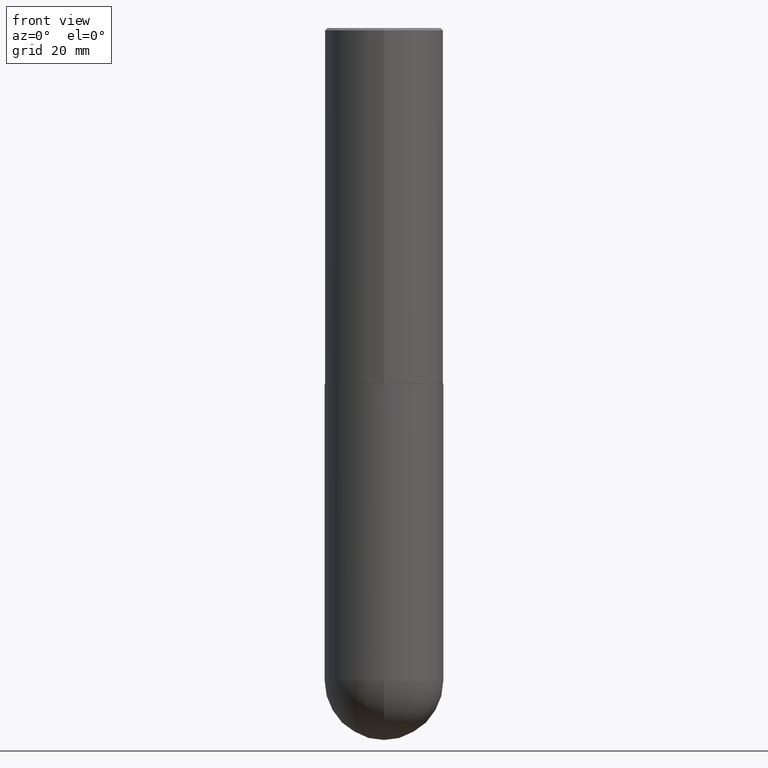
[diagram: clean part render]
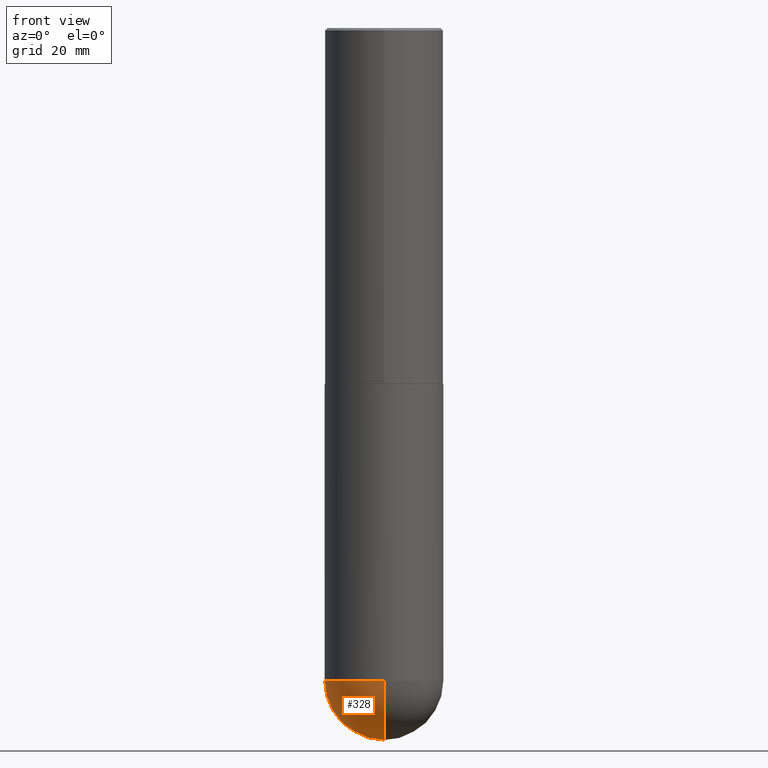
[diagram: same view with one face highlighted and labeled with its STEP entity id]
A machine part, front view. The second image highlights one B-rep face of the part: STEP entity #328.
In plain terms, the highlighted spherical surface has radius 12.7 mm.
Its self-contained STEP definition (entity closure, byte-faithful):
#6 = CIRCLE ( 'NONE', #272, 0.5000000000000005551 ) ;
#12 = VERTEX_POINT ( 'NONE', #65 ) ;
#13 = VERTEX_POINT ( 'NONE', #290 ) ;
#32 = EDGE_CURVE ( 'NONE', #143, #239, #219, .T. ) ;
#33 = DIRECTION ( 'NONE',  ( -1.000000000000000000, 6.982962677686265922E-15, -4.883557194083112901E-29 ) ) ;
#47 = EDGE_CURVE ( 'NONE', #12, #13, #6, .T. ) ;
#51 = ORIENTED_EDGE ( 'NONE', *, *, #47, .T. ) ;
#56 = CARTESIAN_POINT ( 'NONE',  ( 1.311895865610436840E-28, -1.967732973177735475E-14, -5.500000000000000888 ) ) ;
#57 = DIRECTION ( 'NONE',  ( -7.105427357601000281E-15, -1.000000000000000000, 0.000000000000000000 ) ) ;
#59 = DIRECTION ( 'NONE',  ( -1.000000000000000000, 7.105427357601001070E-15, -4.926315508542082329E-29 ) ) ;
#60 = FACE_OUTER_BOUND ( 'NONE', #113, .T. ) ;
#64 = DIRECTION ( 'NONE',  ( 1.000000000000000000, -6.982962677686265922E-15, 4.883557194083112340E-29 ) ) ;
#65 = CARTESIAN_POINT ( 'NONE',  ( 1.436307221642642309E-28, -2.139245423122024710E-14, -6.000000000000001776 ) ) ;
#85 = CIRCLE ( 'NONE', #338, 0.5000000000000000000 ) ;
#91 = DIRECTION ( 'NONE',  ( -2.445468806185136597E-29, 3.491481338843145583E-15, 1.000000000000000000 ) ) ;
#113 = EDGE_LOOP ( 'NONE', ( #309, #51, #281, #361 ) ) ;
#143 = VERTEX_POINT ( 'NONE', #390 ) ;
#195 = DIRECTION ( 'NONE',  ( 6.982962677686265922E-15, 1.000000000000000000, 0.000000000000000000 ) ) ;
#199 = DIRECTION ( 'NONE',  ( 1.000000000000000000, -6.982962677686270655E-15, 0.000000000000000000 ) ) ;
#219 = CIRCLE ( 'NONE', #251, 0.5000000000000000000 ) ;
#224 = DIRECTION ( 'NONE',  ( 6.982962677686265922E-15, 1.000000000000000000, -4.370956789862816416E-15 ) ) ;
#227 = AXIS2_PLACEMENT_3D ( 'NONE', #256, #33, #224 ) ;
#239 = VERTEX_POINT ( 'NONE', #341 ) ;
#248 = EDGE_CURVE ( 'NONE', #12, #143, #412, .T. ) ;
#251 = AXIS2_PLACEMENT_3D ( 'NONE', #266, #91, #260 ) ;
#256 = CARTESIAN_POINT ( 'NONE',  ( 1.311895865610436840E-28, -1.967732973177735475E-14, -5.500000000000000888 ) ) ;
#260 = DIRECTION ( 'NONE',  ( 1.000000000000000000, -6.982962677686270655E-15, 0.000000000000000000 ) ) ;
#266 = CARTESIAN_POINT ( 'NONE',  ( 1.345007843401825128E-28, -1.920314736363730603E-14, -5.500000000000000888 ) ) ;
#272 = AXIS2_PLACEMENT_3D ( 'NONE', #340, #59, #57 ) ;
#281 = ORIENTED_EDGE ( 'NONE', *, *, #372, .F. ) ;
#290 = CARTESIAN_POINT ( 'NONE',  ( -3.552713678800369978E-15, -0.5000000000000196509, -5.499999999999999112 ) ) ;
#300 = CARTESIAN_POINT ( 'NONE',  ( 1.345007843401825128E-28, -1.920314736363730603E-14, -5.500000000000000888 ) ) ;
#309 = ORIENTED_EDGE ( 'NONE', *, *, #248, .F. ) ;
#321 = SPHERICAL_SURFACE ( 'NONE', #227, 0.5000000000000005551 ) ;
#328 = ADVANCED_FACE ( 'NONE', ( #60 ), #321, .T. ) ;
#338 = AXIS2_PLACEMENT_3D ( 'NONE', #300, #358, #199 ) ;
#340 = CARTESIAN_POINT ( 'NONE',  ( 1.311895865610436840E-28, -1.967732973177735475E-14, -5.500000000000000888 ) ) ;
#341 = CARTESIAN_POINT ( 'NONE',  ( -0.5000000000000000000, -1.128608201128287263E-14, -5.500000000000000888 ) ) ;
#358 = DIRECTION ( 'NONE',  ( -2.445468806185136597E-29, 3.491481338843145583E-15, 1.000000000000000000 ) ) ;
#361 = ORIENTED_EDGE ( 'NONE', *, *, #32, .F. ) ;
#372 = EDGE_CURVE ( 'NONE', #239, #13, #85, .T. ) ;
#373 = AXIS2_PLACEMENT_3D ( 'NONE', #56, #64, #195 ) ;
#390 = CARTESIAN_POINT ( 'NONE',  ( 3.491481338843267462E-15, 0.4999999999999808487, -5.500000000000002665 ) ) ;
#412 = CIRCLE ( 'NONE', #373, 0.5000000000000005551 ) ;